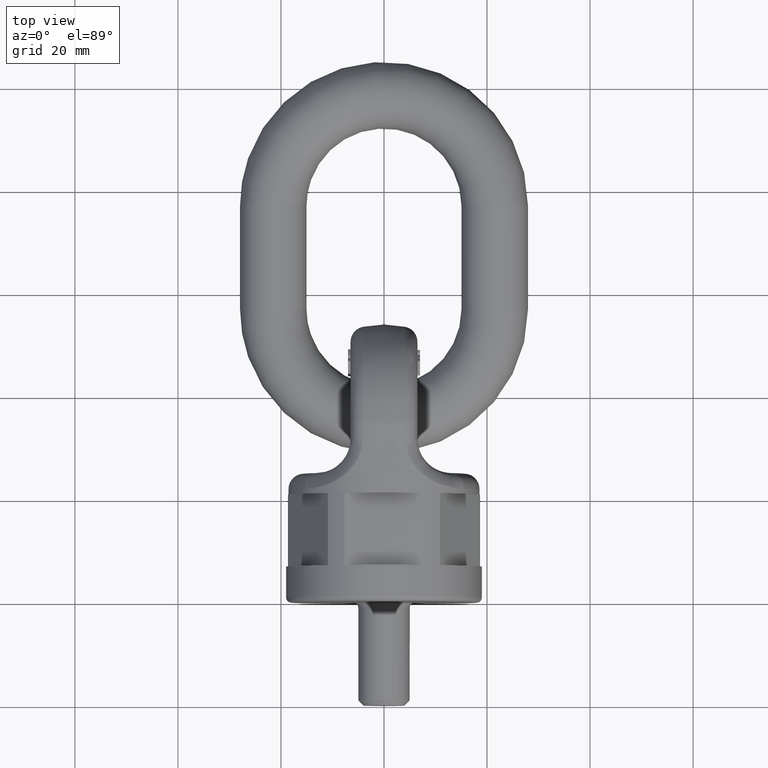
[diagram: clean part render]
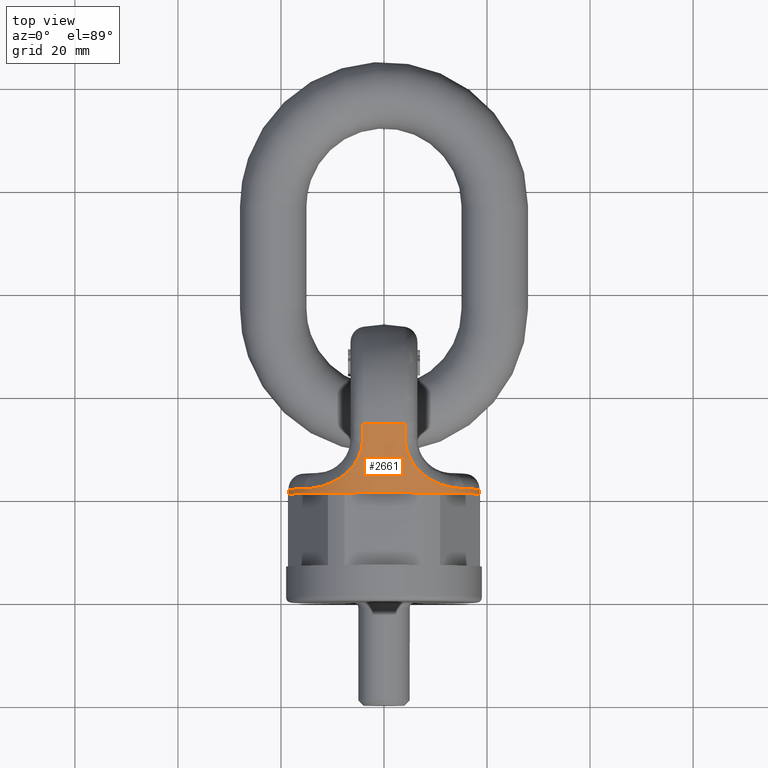
[diagram: same view with one face highlighted and labeled with its STEP entity id]
A machine part, top view. The second image highlights one B-rep face of the part: STEP entity #2661.
In plain terms, the highlighted conical surface has half-angle 1.464 deg.
Its self-contained STEP definition (entity closure, byte-faithful):
#349=B_SPLINE_CURVE_WITH_KNOTS('',3,(#7014,#7015,#7016,#7017),
 .UNSPECIFIED.,.F.,.F.,(4,4),(0.,1.),.UNSPECIFIED.);
#350=B_SPLINE_CURVE_WITH_KNOTS('',3,(#7022,#7023,#7024,#7025),
 .UNSPECIFIED.,.F.,.F.,(4,4),(0.,1.),.UNSPECIFIED.);
#351=B_SPLINE_CURVE_WITH_KNOTS('',3,(#7027,#7028,#7029,#7030,#7031,#7032,
#7033,#7034,#7035,#7036),.UNSPECIFIED.,.F.,.F.,(4,2,2,2,4),(0.,0.25,0.5,
0.75,1.),.UNSPECIFIED.);
#352=B_SPLINE_CURVE_WITH_KNOTS('',3,(#7040,#7041,#7042,#7043,#7044,#7045,
#7046,#7047,#7048,#7049),.UNSPECIFIED.,.F.,.F.,(4,2,2,2,4),(0.,0.25,0.5,
0.75,1.),.UNSPECIFIED.);
#353=B_SPLINE_CURVE_WITH_KNOTS('',3,(#7051,#7052,#7053,#7054),
 .UNSPECIFIED.,.F.,.F.,(4,4),(0.,1.),.UNSPECIFIED.);
#354=B_SPLINE_CURVE_WITH_KNOTS('',3,(#7058,#7059,#7060,#7061),
 .UNSPECIFIED.,.F.,.F.,(4,4),(0.,1.),.UNSPECIFIED.);
#355=B_SPLINE_CURVE_WITH_KNOTS('',3,(#7063,#7064,#7065,#7066,#7067,#7068,
#7069,#7070,#7071,#7072),.UNSPECIFIED.,.F.,.F.,(4,2,2,2,4),(0.,0.25,0.5,
0.75,1.),.UNSPECIFIED.);
#356=B_SPLINE_CURVE_WITH_KNOTS('',3,(#7076,#7077,#7078,#7079,#7080,#7081,
#7082,#7083,#7084,#7085),.UNSPECIFIED.,.F.,.F.,(4,2,2,2,4),(0.,0.25,0.5,
0.75,1.),.UNSPECIFIED.);
#1787=CONICAL_SURFACE('',#5649,18.6484136948249,1.46395699141893);
#2661=ADVANCED_FACE('',(#3008,#3009),#1787,.T.);
#3008=FACE_BOUND('',#3096,.T.);
#3009=FACE_BOUND('',#3097,.T.);
#3096=EDGE_LOOP('',(#3513));
#3097=EDGE_LOOP('',(#3514,#3515,#3516,#3517,#3518,#3519,#3520,#3521,#3522,
#3523,#3524,#3525));
#3513=ORIENTED_EDGE('',*,*,#5058,.F.);
#3514=ORIENTED_EDGE('',*,*,#5059,.T.);
#3515=ORIENTED_EDGE('',*,*,#5060,.T.);
#3516=ORIENTED_EDGE('',*,*,#5061,.T.);
#3517=ORIENTED_EDGE('',*,*,#5062,.T.);
#3518=ORIENTED_EDGE('',*,*,#5063,.T.);
#3519=ORIENTED_EDGE('',*,*,#5064,.T.);
#3520=ORIENTED_EDGE('',*,*,#5065,.T.);
#3521=ORIENTED_EDGE('',*,*,#5066,.T.);
#3522=ORIENTED_EDGE('',*,*,#5067,.T.);
#3523=ORIENTED_EDGE('',*,*,#5068,.T.);
#3524=ORIENTED_EDGE('',*,*,#5069,.T.);
#3525=ORIENTED_EDGE('',*,*,#5070,.T.);
#4645=VERTEX_POINT('',#7013);
#4646=VERTEX_POINT('',#7018);
#4647=VERTEX_POINT('',#7019);
#4648=VERTEX_POINT('',#7021);
#4649=VERTEX_POINT('',#7026);
#4650=VERTEX_POINT('',#7037);
#4651=VERTEX_POINT('',#7039);
#4652=VERTEX_POINT('',#7050);
#4653=VERTEX_POINT('',#7055);
#4654=VERTEX_POINT('',#7057);
#4655=VERTEX_POINT('',#7062);
#4656=VERTEX_POINT('',#7073);
#4657=VERTEX_POINT('',#7075);
#5058=EDGE_CURVE('',#4645,#4645,#5553,.T.);
#5059=EDGE_CURVE('',#4646,#4647,#349,.T.);
#5060=EDGE_CURVE('',#4647,#4648,#5554,.T.);
#5061=EDGE_CURVE('',#4648,#4649,#350,.T.);
#5062=EDGE_CURVE('',#4649,#4650,#351,.T.);
#5063=EDGE_CURVE('',#4650,#4651,#5555,.T.);
#5064=EDGE_CURVE('',#4651,#4652,#352,.T.);
#5065=EDGE_CURVE('',#4652,#4653,#353,.T.);
#5066=EDGE_CURVE('',#4653,#4654,#5556,.T.);
#5067=EDGE_CURVE('',#4654,#4655,#354,.T.);
#5068=EDGE_CURVE('',#4655,#4656,#355,.T.);
#5069=EDGE_CURVE('',#4656,#4657,#5557,.T.);
#5070=EDGE_CURVE('',#4657,#4646,#356,.T.);
#5553=CIRCLE('',#5644,18.6484136948249);
#5554=CIRCLE('',#5645,18.9937982914999);
#5555=CIRCLE('',#5646,18.6720113721645);
#5556=CIRCLE('',#5647,18.9937982914999);
#5557=CIRCLE('',#5648,18.6720113721645);
#5644=AXIS2_PLACEMENT_3D('',#7012,#5959,#5960);
#5645=AXIS2_PLACEMENT_3D('',#7020,#5961,#5962);
#5646=AXIS2_PLACEMENT_3D('',#7038,#5963,#5964);
#5647=AXIS2_PLACEMENT_3D('',#7056,#5965,#5966);
#5648=AXIS2_PLACEMENT_3D('',#7074,#5967,#5968);
#5649=AXIS2_PLACEMENT_3D('',#7086,#5969,#5970);
#5959=DIRECTION('',(0.,-1.,0.));
#5960=DIRECTION('',(0.,0.,-1.));
#5961=DIRECTION('',(0.,-1.,0.));
#5962=DIRECTION('',(0.,0.,-1.));
#5963=DIRECTION('',(8.32667268468868E-16,-1.,0.));
#5964=DIRECTION('',(1.,7.43240111159256E-16,0.));
#5965=DIRECTION('',(0.,-1.,0.));
#5966=DIRECTION('',(0.,0.,-1.));
#5967=DIRECTION('',(-8.32667268468868E-16,-1.,-1.95086507712026E-30));
#5968=DIRECTION('',(-1.,7.43240111159256E-16,-2.34291072916505E-15));
#5969=DIRECTION('',(0.,1.,0.));
#5970=DIRECTION('',(0.,-2.04062746293326E-15,1.));
#7012=CARTESIAN_POINT('',(0.,21.,0.));
#7013=CARTESIAN_POINT('',(0.,21.,-18.6484136948249));
#7014=CARTESIAN_POINT('',(-4.15950741497036,31.4233557313077,-18.4517766458426));
#7015=CARTESIAN_POINT('',(-4.15841622054428,32.4537657762764,-18.4790170367736));
#7016=CARTESIAN_POINT('',(-4.15733044217178,33.4841759661428,-18.5062521646969));
#7017=CARTESIAN_POINT('',(-4.15624999999995,34.514586298282,-18.5334821195501));
#7018=CARTESIAN_POINT('',(-4.15950741497036,31.4233557313077,-18.4517766458426));
#7019=CARTESIAN_POINT('',(-4.15624999999995,34.514586298282,-18.5334821195501));
#7020=CARTESIAN_POINT('',(0.,34.514586298282,0.));
#7021=CARTESIAN_POINT('',(4.15625,34.514586298282,-18.5334821195501));
#7022=CARTESIAN_POINT('',(4.15625,34.514586298282,-18.5334821195501));
#7023=CARTESIAN_POINT('',(4.15733044217183,33.4841759661428,-18.5062521646969));
#7024=CARTESIAN_POINT('',(4.15841622054432,32.4537657762764,-18.4790170367736));
#7025=CARTESIAN_POINT('',(4.15950741497041,31.4233557313077,-18.4517766458426));
#7026=CARTESIAN_POINT('',(4.15950741497041,31.4233557313077,-18.4517766458426));
#7027=CARTESIAN_POINT('',(4.15950741497041,31.4233557313077,-18.4517766458426));
#7028=CARTESIAN_POINT('',(4.16120898645442,29.816569344349,-18.4092989064835));
#7029=CARTESIAN_POINT('',(4.66522994803894,28.2515926450828,-18.2682301448783));
#7030=CARTESIAN_POINT('',(6.33779244076709,25.6305014725102,-17.6863306953856));
#7031=CARTESIAN_POINT('',(7.49877836215917,24.5697693410119,-17.2298785735647));
#7032=CARTESIAN_POINT('',(9.93697532082874,23.0451607554856,-15.9027703847803));
#7033=CARTESIAN_POINT('',(11.2117463757235,22.5674577020305,-15.0342662238502));
#7034=CARTESIAN_POINT('',(13.5571584499843,22.0067867917594,-12.9383350146668));
#7035=CARTESIAN_POINT('',(14.5963560638232,21.9233557313077,-11.7531228799004));
#7036=CARTESIAN_POINT('',(15.4875450511605,21.9233557313077,-10.4297630352043));
#7037=CARTESIAN_POINT('',(15.4875450511605,21.9233557313077,-10.4297630352043));
#7038=CARTESIAN_POINT('',(0.,21.9233557313078,0.));
#7039=CARTESIAN_POINT('',(15.4875450511606,21.9233557313077,10.4297630352043));
#7040=CARTESIAN_POINT('',(15.4875450511606,21.9233557313077,10.4297630352043));
#7041=CARTESIAN_POINT('',(14.5962132237876,21.9233557313077,11.7533349884094));
#7042=CARTESIAN_POINT('',(13.5372725100627,22.0103603320934,12.9578858057789));
#7043=CARTESIAN_POINT('',(11.2071744067671,22.5697432777094,15.0365529692814));
#7044=CARTESIAN_POINT('',(9.93000354387101,23.047073763236,15.9078233343834));
#7045=CARTESIAN_POINT('',(7.47786478382285,24.5853210556568,17.2399892013453));
#7046=CARTESIAN_POINT('',(6.32296779776607,25.6483066229491,17.6918205052819));
#7047=CARTESIAN_POINT('',(4.66149671593484,28.2629306005112,18.2691930515016));
#7048=CARTESIAN_POINT('',(4.16120719675788,29.8182593468178,18.4093435841613));
#7049=CARTESIAN_POINT('',(4.15950741497039,31.4233557313077,18.4517766458427));
#7050=CARTESIAN_POINT('',(4.15950741497041,31.4233557313077,18.4517766458426));
#7051=CARTESIAN_POINT('',(4.15950741497041,31.4233557313077,18.4517766458426));
#7052=CARTESIAN_POINT('',(4.15841622054432,32.4537657762764,18.4790170367736));
#7053=CARTESIAN_POINT('',(4.15733044217183,33.4841759661428,18.5062521646969));
#7054=CARTESIAN_POINT('',(4.15625,34.514586298282,18.5334821195501));
#7055=CARTESIAN_POINT('',(4.15625,34.514586298282,18.5334821195501));
#7056=CARTESIAN_POINT('',(0.,34.514586298282,0.));
#7057=CARTESIAN_POINT('',(-4.15625000000004,34.514586298282,18.5334821195501));
#7058=CARTESIAN_POINT('',(-4.15625000000004,34.514586298282,18.5334821195501));
#7059=CARTESIAN_POINT('',(-4.15733044217187,33.4841759661428,18.5062521646969));
#7060=CARTESIAN_POINT('',(-4.15841622054437,32.4537657762764,18.4790170367735));
#7061=CARTESIAN_POINT('',(-4.15950741497045,31.4233557313077,18.4517766458426));
#7062=CARTESIAN_POINT('',(-4.15950741497045,31.4233557313077,18.4517766458426));
#7063=CARTESIAN_POINT('',(-4.15950741497045,31.4233557313077,18.4517766458426));
#7064=CARTESIAN_POINT('',(-4.16120898645446,29.816569344349,18.4092989064835));
#7065=CARTESIAN_POINT('',(-4.66522994803899,28.2515926450828,18.2682301448783));
#7066=CARTESIAN_POINT('',(-6.33779244076713,25.6305014725102,17.6863306953856));
#7067=CARTESIAN_POINT('',(-7.49877836215921,24.5697693410119,17.2298785735647));
#7068=CARTESIAN_POINT('',(-9.93697532082878,23.0451607554856,15.9027703847803));
#7069=CARTESIAN_POINT('',(-11.2117463757236,22.5674577020305,15.0342662238501));
#7070=CARTESIAN_POINT('',(-13.5571584499843,22.0067867917593,12.9383350146668));
#7071=CARTESIAN_POINT('',(-14.5963560638232,21.9233557313077,11.7531228799004));
#7072=CARTESIAN_POINT('',(-15.4875450511606,21.9233557313077,10.4297630352043));
#7073=CARTESIAN_POINT('',(-15.4875450511606,21.9233557313077,10.4297630352043));
#7074=CARTESIAN_POINT('',(0.,21.9233557313078,0.));
#7075=CARTESIAN_POINT('',(-15.4875450511605,21.9233557313077,-10.4297630352043));
#7076=CARTESIAN_POINT('',(-15.4875450511605,21.9233557313077,-10.4297630352043));
#7077=CARTESIAN_POINT('',(-14.5962132237875,21.9233557313077,-11.7533349884095));
#7078=CARTESIAN_POINT('',(-13.5372725100627,22.0103603320934,-12.9578858057789));
#7079=CARTESIAN_POINT('',(-11.2071744067671,22.5697432777094,-15.0365529692814));
#7080=CARTESIAN_POINT('',(-9.93000354387097,23.047073763236,-15.9078233343834));
#7081=CARTESIAN_POINT('',(-7.47786478382281,24.5853210556568,-17.2399892013454));
#7082=CARTESIAN_POINT('',(-6.32296779776603,25.6483066229491,-17.6918205052819));
#7083=CARTESIAN_POINT('',(-4.66149671593479,28.2629306005112,-18.2691930515016));
#7084=CARTESIAN_POINT('',(-4.16120719675783,29.8182593468178,-18.4093435841613));
#7085=CARTESIAN_POINT('',(-4.15950741497034,31.4233557313077,-18.4517766458427));
#7086=CARTESIAN_POINT('',(0.,21.,0.));